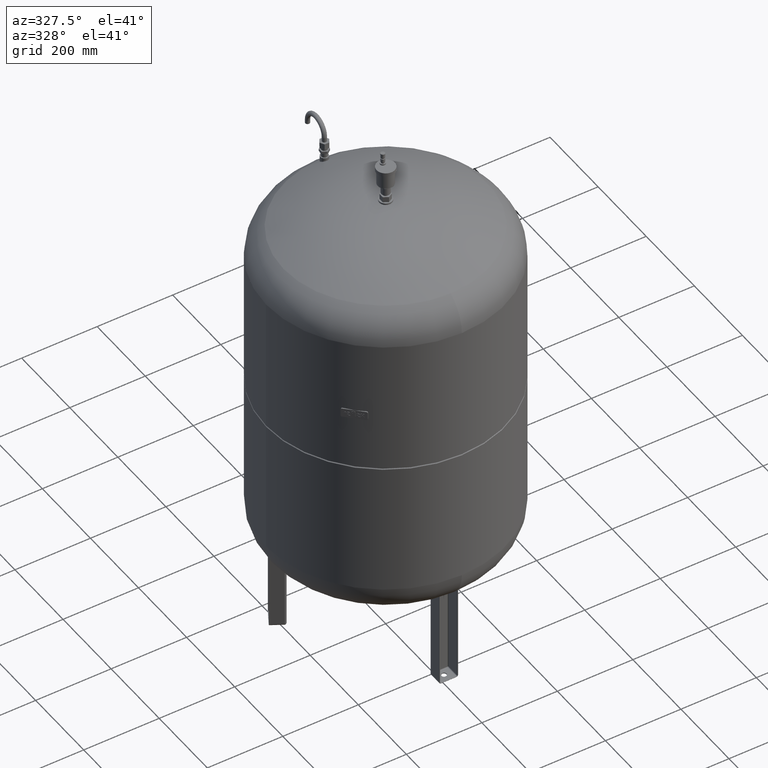
[diagram: clean part render]
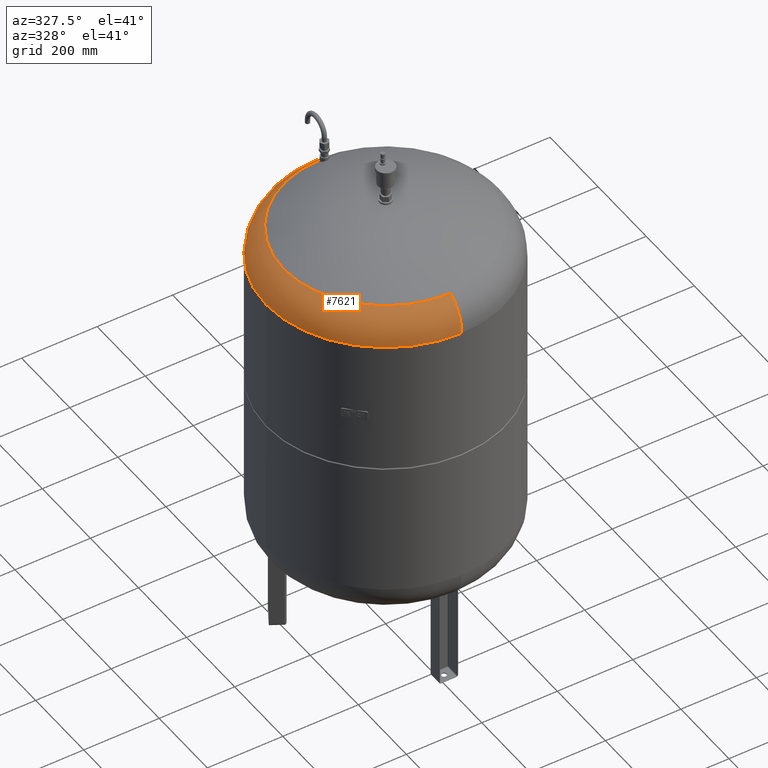
[diagram: same view with one face highlighted and labeled with its STEP entity id]
A machine part, auxiliary view. The second image highlights one B-rep face of the part: STEP entity #7621.
In plain terms, the highlighted toroidal blend (fillet) surface has major radius 218 mm and minor (blend) radius 99 mm.
Its self-contained STEP definition (entity closure, byte-faithful):
#7526=CARTESIAN_POINT('',(-317.000000000000060,1.070324E-014,1068.240550627371500));
#7527=VERTEX_POINT('',#7526);
#7551=CARTESIAN_POINT('',(1.282117E-018,-317.0,1068.240550627371200));
#7552=VERTEX_POINT('',#7551);
#7560=CARTESIAN_POINT('',(-1.556097E-014,4.952455E-014,1068.240550627371200));
#7561=DIRECTION('',(0.0,0.0,-1.0));
#7562=DIRECTION('',(-1.0,0.0,0.0));
#7563=AXIS2_PLACEMENT_3D('',#7560,#7561,#7562);
#7564=CIRCLE('',#7563,317.000000000000060);
#7565=EDGE_CURVE('',#7552,#7527,#7564,.T.);
#7570=CARTESIAN_POINT('',(-3.639005E-030,4.952455E-014,1068.240550627371200));
#7571=DIRECTION('',(-9.619823E-017,3.061617E-016,-1.0));
#7572=DIRECTION('',(0.0,1.0,0.0));
#7573=AXIS2_PLACEMENT_3D('',#7570,#7571,#7572);
#7574=TOROIDAL_SURFACE('',#7573,218.0,99.0);
#7575=CARTESIAN_POINT('',(-3.882130E-014,317.000000000000110,1068.240550627371200));
#7576=VERTEX_POINT('',#7575);
#7577=CARTESIAN_POINT('',(-2.507790E-014,270.639024390243830,1152.086439681297600));
#7578=VERTEX_POINT('',#7577);
#7579=CARTESIAN_POINT('',(-2.669730E-014,218.000000000000060,1068.240550627371200));
#7580=DIRECTION('',(1.0,0.0,0.0));
#7581=DIRECTION('',(0.0,1.0,0.0));
#7582=AXIS2_PLACEMENT_3D('',#7579,#7580,#7581);
#7583=CIRCLE('',#7582,99.0);
#7584=EDGE_CURVE('',#7576,#7578,#7583,.T.);
#7585=ORIENTED_EDGE('',*,*,#7584,.F.);
#7586=CARTESIAN_POINT('',(-1.556097E-014,4.952455E-014,1068.240550627371200));
#7587=DIRECTION('',(0.0,0.0,-1.0));
#7588=DIRECTION('',(-1.0,0.0,0.0));
#7589=AXIS2_PLACEMENT_3D('',#7586,#7587,#7588);
#7590=CIRCLE('',#7589,317.000000000000060);
#7591=EDGE_CURVE('',#7527,#7576,#7590,.T.);
#7592=ORIENTED_EDGE('',*,*,#7591,.F.);
#7593=ORIENTED_EDGE('',*,*,#7565,.F.);
#7594=CARTESIAN_POINT('',(8.066920E-015,-270.639024390243830,1152.086439681297600));
#7595=VERTEX_POINT('',#7594);
#7596=CARTESIAN_POINT('',(8.817081E-019,-217.999999999999940,1068.240550627371200));
#7597=DIRECTION('',(-1.0,0.0,0.0));
#7598=DIRECTION('',(0.0,-1.0,0.0));
#7599=AXIS2_PLACEMENT_3D('',#7596,#7597,#7598);
#7600=CIRCLE('',#7599,99.0);
#7601=EDGE_CURVE('',#7552,#7595,#7600,.T.);
#7602=ORIENTED_EDGE('',*,*,#7601,.T.);
#7603=CARTESIAN_POINT('',(-270.639024390243830,-9.289573E-015,1152.086439681297600));
#7604=VERTEX_POINT('',#7603);
#7605=CARTESIAN_POINT('',(-7.495146E-015,2.385415E-014,1152.086439681297600));
#7606=DIRECTION('',(0.0,0.0,-1.0));
#7607=DIRECTION('',(-1.0,0.0,0.0));
#7608=AXIS2_PLACEMENT_3D('',#7605,#7606,#7607);
#7609=CIRCLE('',#7608,270.639024390243830);
#7610=EDGE_CURVE('',#7595,#7604,#7609,.T.);
#7611=ORIENTED_EDGE('',*,*,#7610,.T.);
#7612=CARTESIAN_POINT('',(-7.495146E-015,2.385415E-014,1152.086439681297600));
#7613=DIRECTION('',(0.0,0.0,-1.0));
#7614=DIRECTION('',(-1.0,0.0,0.0));
#7615=AXIS2_PLACEMENT_3D('',#7612,#7613,#7614);
#7616=CIRCLE('',#7615,270.639024390243830);
#7617=EDGE_CURVE('',#7604,#7578,#7616,.T.);
#7618=ORIENTED_EDGE('',*,*,#7617,.T.);
#7619=EDGE_LOOP('',(#7585,#7592,#7593,#7602,#7611,#7618));
#7620=FACE_OUTER_BOUND('',#7619,.T.);
#7621=ADVANCED_FACE('',(#7620),#7574,.T.);